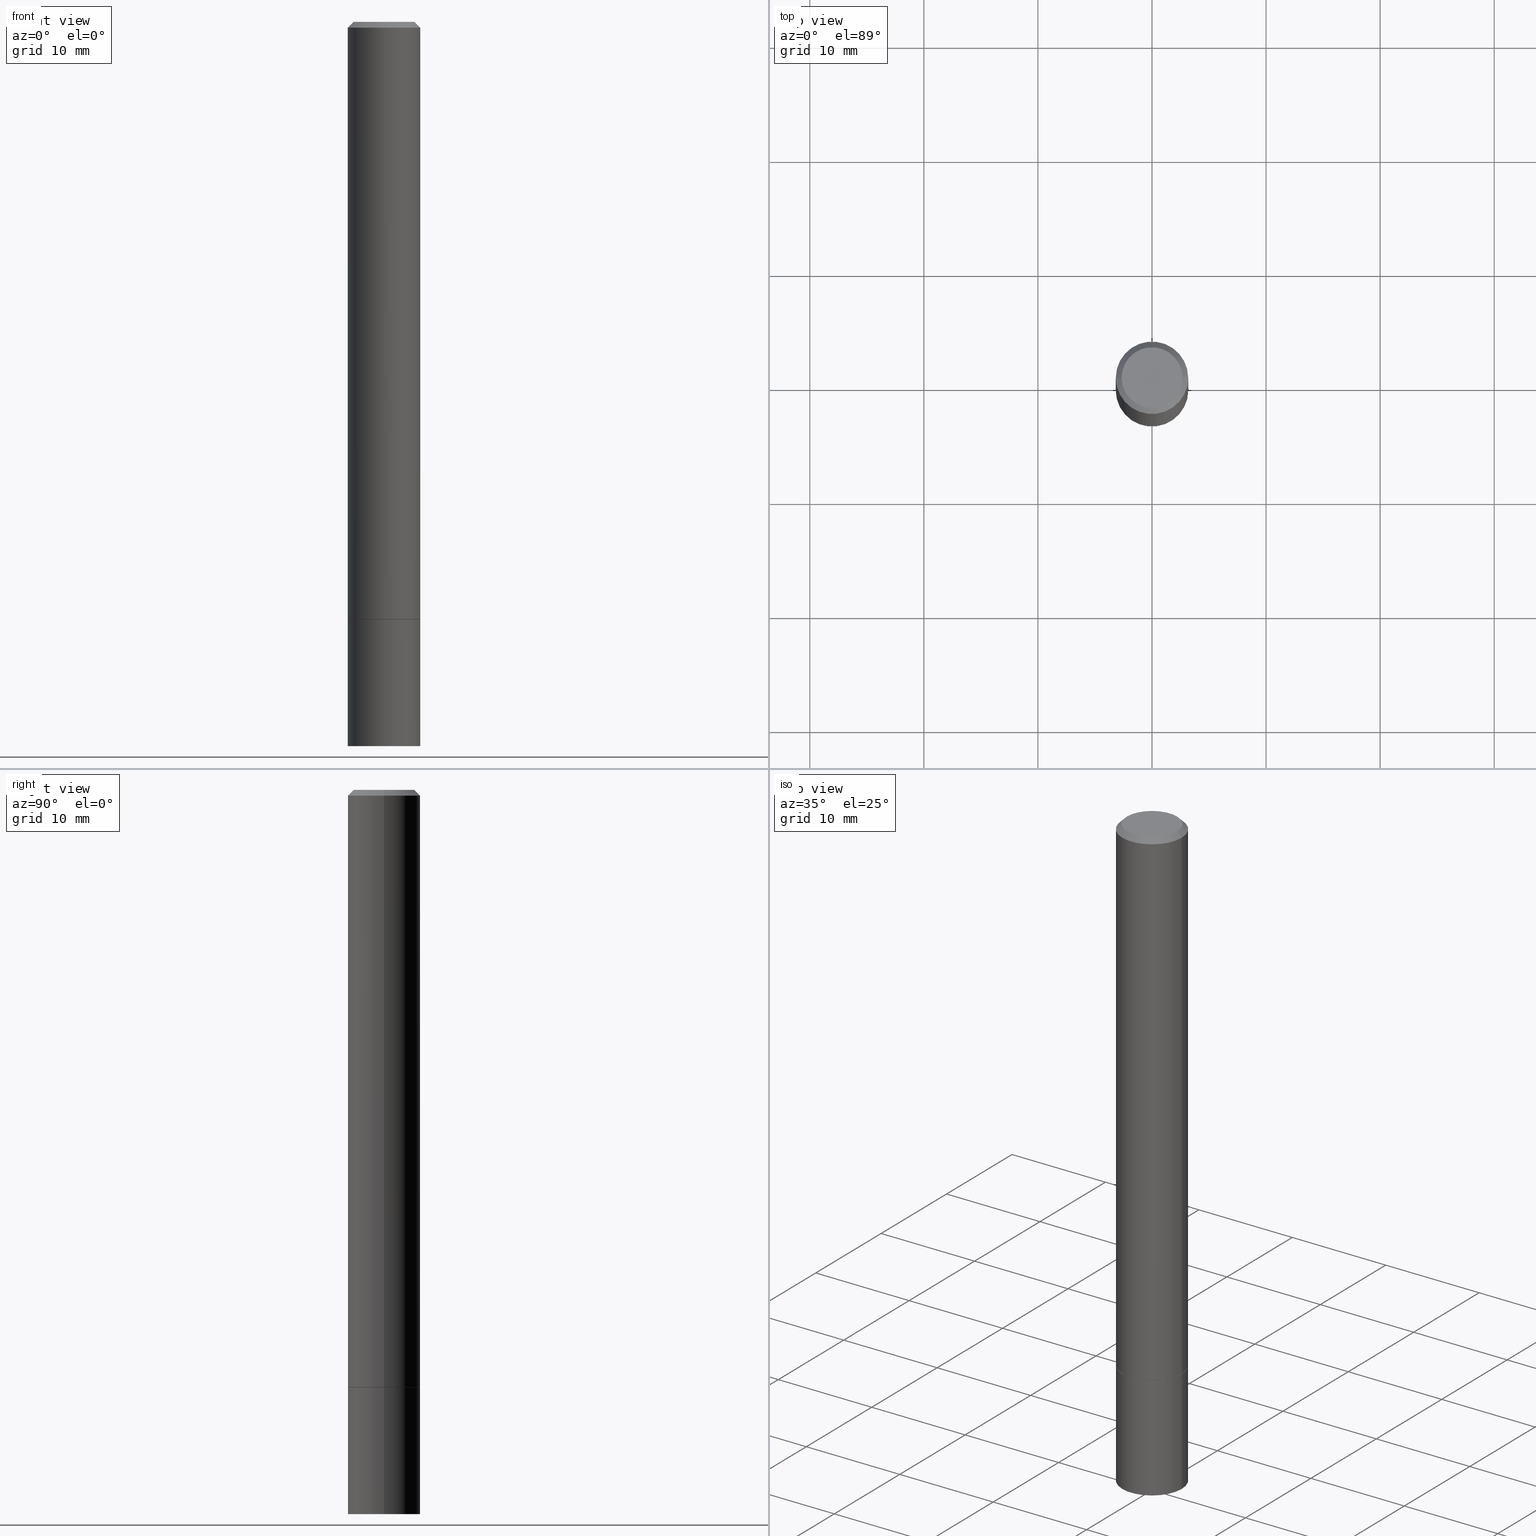
[diagram: canonical four-view strip — front | top / right | iso, engineering-drawing reading convention]
A machine part, canonical four-view strip (front | top / right | iso — engineering-drawing reading convention). The complete STEP part file that produces these views, byte-faithful:
ISO-10303-21;
HEADER;
FILE_DESCRIPTION (( 'STEP AP203' ),
    '1' );
FILE_NAME ('32659.STEP',
    '2022-04-27T15:46:36',
    ( '' ),
    ( '' ),
    'SwSTEP 2.0',
    'SolidWorks 2022',
    '' );
FILE_SCHEMA (( 'CONFIG_CONTROL_DESIGN' ));
ENDSEC;

DATA;
#1 = ORIENTED_EDGE ( 'NONE', *, *, #10, .F. ) ;
#2 = APPLICATION_CONTEXT ( 'configuration controlled 3d designs of mechanical parts and assemblies' ) ;
#3 = DIRECTION ( 'NONE',  ( -2.445468806185136597E-29, 3.491481338843145583E-15, 1.000000000000000000 ) ) ;
#4 = CIRCLE ( 'NONE', #306, 0.1239999999999999991 ) ;
#5 = DIRECTION ( 'NONE',  ( -2.445468806185136597E-29, 3.491481338843145583E-15, 1.000000000000000000 ) ) ;
#6 = CARTESIAN_POINT ( 'NONE',  ( 5.043779412756845352E-29, -7.201180261363990155E-15, -2.062500000000000444 ) ) ;
#7 = CARTESIAN_POINT ( 'NONE',  ( 0.000000000000000000, 0.000000000000000000, 0.000000000000000000 ) ) ;
#8 = LINE ( 'NONE', #364, #215 ) ;
#9 = AXIS2_PLACEMENT_3D ( 'NONE', #25, #210, #296 ) ;
#10 = EDGE_CURVE ( 'NONE', #49, #267, #332, .T. ) ;
#11 = DIRECTION ( 'NONE',  ( -2.438088387897960049E-29, 3.491481338843145188E-15, 1.000000000000000000 ) ) ;
#12 = DIRECTION ( 'NONE',  ( -1.000000000000000000, 6.982962677686267499E-15, 0.000000000000000000 ) ) ;
#13 = DIRECTION ( 'NONE',  ( -2.445468806185136597E-29, 3.491481338843145583E-15, 1.000000000000000000 ) ) ;
#14 = CC_DESIGN_PERSON_AND_ORGANIZATION_ASSIGNMENT ( #203, #295, ( #270 ) ) ;
#15 = DIRECTION ( 'NONE',  ( 0.7071067811864267805, -2.468850131080992517E-15, 0.7071067811866682540 ) ) ;
#16 = CARTESIAN_POINT ( 'NONE',  ( 5.041333943950659188E-29, -7.197688780025145571E-15, -2.061500000000000110 ) ) ;
#17 = ORIENTED_EDGE ( 'NONE', *, *, #258, .F. ) ;
#18 = CALENDAR_DATE ( 2022, 27, 4 ) ;
#19 = DIRECTION ( 'NONE',  ( -2.445468806185136597E-29, 3.491481338843145583E-15, 1.000000000000000000 ) ) ;
#20 = UNCERTAINTY_MEASURE_WITH_UNIT (LENGTH_MEASURE( 1.000000000000000082E-05 ), #255, 'distance_accuracy_value', 'NONE');
#21 = AXIS2_PLACEMENT_3D ( 'NONE', #105, #11, #313 ) ;
#22 = APPLICATION_PROTOCOL_DEFINITION ( 'international standard', 'config_control_design', 1994, #33 ) ;
#23 = EDGE_LOOP ( 'NONE', ( #193, #123 ) ) ;
#24 = PERSON_AND_ORGANIZATION_ROLE ( 'design_supplier' ) ;
#25 = CARTESIAN_POINT ( 'NONE',  ( 1.023866357444715952E-27, -1.461809805729698343E-13, -41.86789685704145825 ) ) ;
#26 =( NAMED_UNIT ( * ) SI_UNIT ( $, .STERADIAN. ) SOLID_ANGLE_UNIT ( ) );
#27 = ADVANCED_FACE ( 'NONE', ( #180 ), #275, .T. ) ;
#28 = VERTEX_POINT ( 'NONE', #58 ) ;
#29 = AXIS2_PLACEMENT_3D ( 'NONE', #223, #13, #111 ) ;
#30 = ORIENTED_EDGE ( 'NONE', *, *, #361, .T. ) ;
#31 = LINE ( 'NONE', #339, #245 ) ;
#32 = DIRECTION ( 'NONE',  ( 2.445468806185136597E-29, -3.491481338843145583E-15, -1.000000000000000000 ) ) ;
#33 = APPLICATION_CONTEXT ( 'configuration controlled 3d designs of mechanical parts and assemblies' ) ;
#34 = AXIS2_PLACEMENT_3D ( 'NONE', #284, #172, #12 ) ;
#35 = CARTESIAN_POINT ( 'NONE',  ( 5.043779412756845352E-29, -7.201180261363990155E-15, -2.062500000000000444 ) ) ;
#36 =( GEOMETRIC_REPRESENTATION_CONTEXT ( 3 ) GLOBAL_UNCERTAINTY_ASSIGNED_CONTEXT ( ( #20 ) ) GLOBAL_UNIT_ASSIGNED_CONTEXT ( ( #255, #128, #26 ) ) REPRESENTATION_CONTEXT ( 'NONE', 'WORKASPACE' ) );
#37 = LINE ( 'NONE', #164, #47 ) ;
#38 = LINE ( 'NONE', #246, #119 ) ;
#39 = ADVANCED_FACE ( 'NONE', ( #179 ), #109, .F. ) ;
#40 = DIRECTION ( 'NONE',  ( 1.000000000000000000, -6.982962677686270655E-15, 0.000000000000000000 ) ) ;
#41 = VERTEX_POINT ( 'NONE', #152 ) ;
#42 = CC_DESIGN_APPROVAL ( #107, ( #91 ) ) ;
#43 = CYLINDRICAL_SURFACE ( 'NONE', #325, 0.1249999999999998612 ) ;
#44 = CARTESIAN_POINT ( 'NONE',  ( 0.1239999999999999991, -8.067067633397087480E-15, -2.062500000000000444 ) ) ;
#45 = DIRECTION ( 'NONE',  ( 1.000000000000000000, -6.982962677686266711E-15, 4.876176775795935793E-29 ) ) ;
#46 = VERTEX_POINT ( 'NONE', #129 ) ;
#47 = VECTOR ( 'NONE', #214, 39.37007874015748143 ) ;
#48 = DIRECTION ( 'NONE',  ( 1.000000000000000000, -6.982962677686266711E-15, 4.876176775795935793E-29 ) ) ;
#49 = VERTEX_POINT ( 'NONE', #213 ) ;
#50 = PERSON_AND_ORGANIZATION ( #291, #189 ) ;
#51 = ORIENTED_EDGE ( 'NONE', *, *, #143, .T. ) ;
#52 = CALENDAR_DATE ( 2022, 27, 4 ) ;
#53 = ORIENTED_EDGE ( 'NONE', *, *, #71, .F. ) ;
#54 = AXIS2_PLACEMENT_3D ( 'NONE', #302, #389, #88 ) ;
#55 = LOCAL_TIME ( 11, 46, 36.00000000000000000, #93 ) ;
#56 = SECURITY_CLASSIFICATION_LEVEL ( 'unclassified' ) ;
#57 = ADVANCED_FACE ( 'NONE', ( #62 ), #182, .T. ) ;
#58 = CARTESIAN_POINT ( 'NONE',  ( 0.1250000000000000000, -8.074050596074771916E-15, -2.062500000000000000 ) ) ;
#59 = MECHANICAL_CONTEXT ( 'NONE', #33, 'mechanical' ) ;
#60 = ORIENTED_EDGE ( 'NONE', *, *, #143, .F. ) ;
#61 = DIRECTION ( 'NONE',  ( 0.000000000000000000, 0.000000000000000000, 1.000000000000000000 ) ) ;
#62 = FACE_OUTER_BOUND ( 'NONE', #79, .T. ) ;
#63 = CIRCLE ( 'NONE', #208, 0.1250000000000000000 ) ;
#64 = CC_DESIGN_APPROVAL ( #297, ( #127 ) ) ;
#65 = DIRECTION ( 'NONE',  ( 2.438088387897960049E-29, -3.491481338843145188E-15, -1.000000000000000000 ) ) ;
#66 = VECTOR ( 'NONE', #185, 39.37007874015748143 ) ;
#67 = LINE ( 'NONE', #132, #66 ) ;
#68 = DIRECTION ( 'NONE',  ( -2.445468806185136597E-29, 3.491481338843145583E-15, 1.000000000000000000 ) ) ;
#69 = AXIS2_PLACEMENT_3D ( 'NONE', #113, #196, #310 ) ;
#70 = CARTESIAN_POINT ( 'NONE',  ( 0.1249999999999997363, -9.273918764983025741E-16, -0.02000000000000003164 ) ) ;
#71 = EDGE_CURVE ( 'NONE', #267, #46, #37, .T. ) ;
#72 = FACE_OUTER_BOUND ( 'NONE', #85, .T. ) ;
#73 = DIRECTION ( 'NONE',  ( -2.445468806185136597E-29, 3.491481338843145583E-15, 1.000000000000000000 ) ) ;
#74 = CIRCLE ( 'NONE', #252, 0.1249999999999997363 ) ;
#75 = CC_DESIGN_PERSON_AND_ORGANIZATION_ASSIGNMENT ( #292, #178, ( #91 ) ) ;
#76 = CARTESIAN_POINT ( 'NONE',  ( -0.1049999999999997741, 7.681258945454874055E-16, -5.249639473182155366E-30 ) ) ;
#77 = ORIENTED_EDGE ( 'NONE', *, *, #251, .F. ) ;
#78 = ADVANCED_FACE ( 'NONE', ( #249 ), #159, .F. ) ;
#79 = EDGE_LOOP ( 'NONE', ( #350, #347, #330, #17 ) ) ;
#80 = DIRECTION ( 'NONE',  ( -2.445468806185136597E-29, 3.491481338843145583E-15, 1.000000000000000000 ) ) ;
#81 = CIRCLE ( 'NONE', #118, 0.1250000000000000000 ) ;
#82 = LOCAL_TIME ( 11, 46, 36.00000000000000000, #260 ) ;
#83 = ADVANCED_FACE ( 'NONE', ( #191 ), #278, .T. ) ;
#84 = APPROVAL_DATE_TIME ( #173, #163 ) ;
#85 = EDGE_LOOP ( 'NONE', ( #227, #51, #77 ) ) ;
#86 = ORIENTED_EDGE ( 'NONE', *, *, #343, .T. ) ;
#87 = SHAPE_DEFINITION_REPRESENTATION ( #248, #242 ) ;
#88 = DIRECTION ( 'NONE',  ( -1.000000000000000000, 6.982962677686267499E-15, 0.000000000000000000 ) ) ;
#89 = AXIS2_PLACEMENT_3D ( 'NONE', #7, #336, #273 ) ;
#90 = AXIS2_PLACEMENT_3D ( 'NONE', #266, #61, #383 ) ;
#91 = PRODUCT_DEFINITION ( 'UNKNOWN', '', #270, #194 ) ;
#92 = CARTESIAN_POINT ( 'NONE',  ( 5.041333943950659188E-29, -7.197688780025145571E-15, -2.061500000000000110 ) ) ;
#93 = COORDINATED_UNIVERSAL_TIME_OFFSET ( 5, 0, .BEHIND. ) ;
#94 = VERTEX_POINT ( 'NONE', #335 ) ;
#95 = CARTESIAN_POINT ( 'NONE',  ( 0.000000000000000000, 0.000000000000000000, 0.000000000000000000 ) ) ;
#96 = AXIS2_PLACEMENT_3D ( 'NONE', #6, #134, #184 ) ;
#97 = LOCAL_TIME ( 11, 46, 36.00000000000000000, #322 ) ;
#98 = DIRECTION ( 'NONE',  ( -0.7071067811865465735, 2.468850131082246805E-15, -0.7071067811865484609 ) ) ;
#99 = DIRECTION ( 'NONE',  ( -1.000000000000000000, 6.982962677686265922E-15, -4.876176775795935793E-29 ) ) ;
#100 = DIRECTION ( 'NONE',  ( -2.445468806185136877E-29, 3.491481338843145188E-15, 1.000000000000000000 ) ) ;
#101 = EDGE_CURVE ( 'NONE', #41, #380, #67, .T. ) ;
#102 = VECTOR ( 'NONE', #369, 39.37007874015748143 ) ;
#103 = LOCAL_TIME ( 11, 46, 36.00000000000000000, #120 ) ;
#104 = DIRECTION ( 'NONE',  ( -2.445468806185136597E-29, 3.491481338843145583E-15, 1.000000000000000000 ) ) ;
#105 = CARTESIAN_POINT ( 'NONE',  ( 5.043779412756844791E-29, -7.201180261363988578E-15, -2.062500000000000000 ) ) ;
#106 = DIRECTION ( 'NONE',  ( -2.445468806185136597E-29, 3.491481338843145583E-15, 1.000000000000000000 ) ) ;
#107 = APPROVAL ( #385, 'UNSPECIFIED' ) ;
#108 = CARTESIAN_POINT ( 'NONE',  ( 5.043779412756845352E-29, -7.201180261363990155E-15, -2.062500000000000444 ) ) ;
#109 = CONICAL_SURFACE ( 'NONE', #9, 2255.510300424507022, 1.553343034274960344 ) ;
#110 = CC_DESIGN_APPROVAL ( #163, ( #270 ) ) ;
#111 = DIRECTION ( 'NONE',  ( 1.000000000000000000, -6.982962677686267499E-15, 0.000000000000000000 ) ) ;
#112 = EDGE_LOOP ( 'NONE', ( #311, #117 ) ) ;
#113 = CARTESIAN_POINT ( 'NONE',  ( 0.000000000000000000, 0.000000000000000000, 0.000000000000000000 ) ) ;
#114 = ORIENTED_EDGE ( 'NONE', *, *, #343, .F. ) ;
#115 = EDGE_CURVE ( 'NONE', #321, #94, #334, .T. ) ;
#116 = CALENDAR_DATE ( 2022, 27, 4 ) ;
#117 = ORIENTED_EDGE ( 'NONE', *, *, #133, .F. ) ;
#118 = AXIS2_PLACEMENT_3D ( 'NONE', #169, #378, #286 ) ;
#119 = VECTOR ( 'NONE', #192, 39.37007874015748143 ) ;
#120 = COORDINATED_UNIVERSAL_TIME_OFFSET ( 5, 0, .BEHIND. ) ;
#121 = EDGE_LOOP ( 'NONE', ( #53, #359, #241, #197 ) ) ;
#122 = APPROVAL_ROLE ( '' ) ;
#123 = ORIENTED_EDGE ( 'NONE', *, *, #289, .T. ) ;
#124 = PERSON_AND_ORGANIZATION_ROLE ( 'design_owner' ) ;
#125 = EDGE_LOOP ( 'NONE', ( #323, #231, #233, #157 ) ) ;
#126 = EDGE_CURVE ( 'NONE', #236, #267, #135, .T. ) ;
#127 = SECURITY_CLASSIFICATION ( '', '', #56 ) ;
#128 =( NAMED_UNIT ( * ) PLANE_ANGLE_UNIT ( ) SI_UNIT ( $, .RADIAN. ) );
#129 = CARTESIAN_POINT ( 'NONE',  ( -0.1249999999999997363, 8.030407079339185615E-16, -0.02000000000000003164 ) ) ;
#130 = ORIENTED_EDGE ( 'NONE', *, *, #170, .T. ) ;
#131 = DIRECTION ( 'NONE',  ( 1.000000000000000000, -6.982962677686270655E-15, 0.000000000000000000 ) ) ;
#132 = CARTESIAN_POINT ( 'NONE',  ( -0.1250000000000000000, 8.881784197001252323E-16, -6.148668862818632227E-30 ) ) ;
#133 = EDGE_CURVE ( 'NONE', #236, #269, #4, .T. ) ;
#134 = DIRECTION ( 'NONE',  ( -2.445468806185136597E-29, 3.491481338843145583E-15, 1.000000000000000000 ) ) ;
#135 = LINE ( 'NONE', #280, #102 ) ;
#136 = CIRCLE ( 'NONE', #29, 0.1249999999999997363 ) ;
#137 = PLANE ( 'NONE',  #293 ) ;
#138 = DIRECTION ( 'NONE',  ( 0.7071067811865465735, -7.319954787623252890E-15, -0.7071067811865484609 ) ) ;
#139 = LENGTH_MEASURE_WITH_UNIT ( LENGTH_MEASURE( 0.02539999999999999897 ), #312 );
#140 = CYLINDRICAL_SURFACE ( 'NONE', #301, 0.1250000000000000000 ) ;
#141 = CONICAL_SURFACE ( 'NONE', #341, 2255.510300424507022, 1.553343034274960344 ) ;
#142 = CARTESIAN_POINT ( 'NONE',  ( -0.1250000000000000000, -7.076763384535801528E-15, -2.062500000000000000 ) ) ;
#143 = EDGE_CURVE ( 'NONE', #386, #154, #31, .T. ) ;
#144 = PERSON_AND_ORGANIZATION ( #291, #189 ) ;
#145 = ORIENTED_EDGE ( 'NONE', *, *, #317, .T. ) ;
#146 = DATE_AND_TIME ( #18, #103 ) ;
#147 = ORIENTED_EDGE ( 'NONE', *, *, #317, .F. ) ;
#148 = CONICAL_SURFACE ( 'NONE', #96, 0.1239999999999999991, 0.7853981633972775267 ) ;
#149 = DATE_AND_TIME ( #151, #97 ) ;
#150 = ORIENTED_EDGE ( 'NONE', *, *, #250, .F. ) ;
#151 = CALENDAR_DATE ( 2022, 27, 4 ) ;
#152 = CARTESIAN_POINT ( 'NONE',  ( -0.1250000000000006661, -7.855833012397075293E-15, -2.500000000000000000 ) ) ;
#153 = DATE_AND_TIME ( #212, #55 ) ;
#154 = VERTEX_POINT ( 'NONE', #305 ) ;
#155 = CIRCLE ( 'NONE', #69, 0.1049999999999997741 ) ;
#156 = APPROVAL_PERSON_ORGANIZATION ( #239, #107, #122 ) ;
#157 = ORIENTED_EDGE ( 'NONE', *, *, #158, .F. ) ;
#158 = EDGE_CURVE ( 'NONE', #321, #46, #8, .T. ) ;
#159 = PLANE ( 'NONE',  #370 ) ;
#160 = CARTESIAN_POINT ( 'NONE',  ( 1.023866357444715952E-27, -1.461809805729698343E-13, -41.86789685704145825 ) ) ;
#161 = AXIS2_PLACEMENT_3D ( 'NONE', #216, #3, #308 ) ;
#162 = DIRECTION ( 'NONE',  ( 1.000000000000000000, -6.982962677686270655E-15, 0.000000000000000000 ) ) ;
#163 = APPROVAL ( #349, 'UNSPECIFIED' ) ;
#164 = CARTESIAN_POINT ( 'NONE',  ( -0.1249999999999998612, 8.881784197001242463E-16, -6.148668862818625221E-30 ) ) ;
#165 = DIRECTION ( 'NONE',  ( -1.000000000000000000, 6.982962677686265922E-15, -4.876176775795935793E-29 ) ) ;
#166 = VECTOR ( 'NONE', #15, 39.37007874015748143 ) ;
#167 = FACE_OUTER_BOUND ( 'NONE', #261, .T. ) ;
#168 = CARTESIAN_POINT ( 'NONE',  ( 6.113672015462842613E-29, -8.728703347107864943E-15, -2.500000000000000000 ) ) ;
#169 = CARTESIAN_POINT ( 'NONE',  ( 6.113672015462842613E-29, -8.728703347107864943E-15, -2.500000000000000000 ) ) ;
#170 = EDGE_CURVE ( 'NONE', #269, #236, #201, .T. ) ;
#171 = CARTESIAN_POINT ( 'NONE',  ( 5.043779412756844791E-29, -7.201180261363988578E-15, -2.062500000000000000 ) ) ;
#172 = DIRECTION ( 'NONE',  ( 2.445468806185136597E-29, -3.491481338843145583E-15, -1.000000000000000000 ) ) ;
#173 = DATE_AND_TIME ( #52, #82 ) ;
#174 = ORIENTED_EDGE ( 'NONE', *, *, #258, .T. ) ;
#175 = CC_DESIGN_PERSON_AND_ORGANIZATION_ASSIGNMENT ( #320, #24, ( #270 ) ) ;
#176 = ORIENTED_EDGE ( 'NONE', *, *, #133, .T. ) ;
#177 = AXIS2_PLACEMENT_3D ( 'NONE', #344, #106, #288 ) ;
#178 = PERSON_AND_ORGANIZATION_ROLE ( 'creator' ) ;
#179 = FACE_OUTER_BOUND ( 'NONE', #299, .T. ) ;
#180 = FACE_OUTER_BOUND ( 'NONE', #256, .T. ) ;
#181 = ADVANCED_FACE ( 'NONE', ( #72 ), #141, .F. ) ;
#182 = CYLINDRICAL_SURFACE ( 'NONE', #161, 0.1250000000000000000 ) ;
#183 = AXIS2_PLACEMENT_3D ( 'NONE', #16, #372, #318 ) ;
#184 = DIRECTION ( 'NONE',  ( 1.000000000000000000, -6.982962677686270655E-15, 0.000000000000000000 ) ) ;
#185 = DIRECTION ( 'NONE',  ( -2.445468806185136877E-29, 3.491481338843145188E-15, 1.000000000000000000 ) ) ;
#186 = CARTESIAN_POINT ( 'NONE',  ( 0.1250000000000000000, -8.728703347107833388E-16, 6.095220969744919741E-30 ) ) ;
#187 = EDGE_CURVE ( 'NONE', #386, #41, #38, .T. ) ;
#188 = AXIS2_PLACEMENT_3D ( 'NONE', #171, #225, #40 ) ;
#189 = ORGANIZATION ( 'UNSPECIFIED', 'UNSPECIFIED', '' ) ;
#190 = CLOSED_SHELL ( 'NONE', ( #338, #181, #39, #57, #78 ) ) ;
#191 = FACE_OUTER_BOUND ( 'NONE', #206, .T. ) ;
#192 = DIRECTION ( 'NONE',  ( -0.9998476951563912696, 6.920964387254060733E-15, -0.01745240643727649296 ) ) ;
#193 = ORIENTED_EDGE ( 'NONE', *, *, #115, .T. ) ;
#194 = DESIGN_CONTEXT ( 'detailed design', #2, 'design' ) ;
#195 = DIRECTION ( 'NONE',  ( -2.445468806185136597E-29, 3.491481338843145583E-15, 1.000000000000000000 ) ) ;
#196 = DIRECTION ( 'NONE',  ( -2.445468806185136597E-29, 3.491481338843145583E-15, 1.000000000000000000 ) ) ;
#197 = ORIENTED_EDGE ( 'NONE', *, *, #319, .F. ) ;
#198 = CARTESIAN_POINT ( 'NONE',  ( -0.1250000000000000000, -2.745580783700874863E-15, -2.061500000000000110 ) ) ;
#199 = ADVANCED_FACE ( 'NONE', ( #309 ), #137, .F. ) ;
#200 = FACE_OUTER_BOUND ( 'NONE', #238, .T. ) ;
#201 = CIRCLE ( 'NONE', #264, 0.1239999999999999991 ) ;
#202 = APPROVAL_PERSON_ORGANIZATION ( #263, #297, #205 ) ;
#203 = PERSON_AND_ORGANIZATION ( #291, #189 ) ;
#204 = ORIENTED_EDGE ( 'NONE', *, *, #126, .F. ) ;
#205 = APPROVAL_ROLE ( '' ) ;
#206 = EDGE_LOOP ( 'NONE', ( #240, #352, #229, #384 ) ) ;
#207 = EDGE_LOOP ( 'NONE', ( #30, #174 ) ) ;
#208 = AXIS2_PLACEMENT_3D ( 'NONE', #168, #73, #259 ) ;
#209 = EDGE_CURVE ( 'NONE', #154, #28, #218, .T. ) ;
#210 = DIRECTION ( 'NONE',  ( 2.445468806185136597E-29, -3.491481338843145583E-15, -1.000000000000000000 ) ) ;
#211 = ADVANCED_FACE ( 'NONE', ( #333 ), #148, .T. ) ;
#212 = CALENDAR_DATE ( 2022, 27, 4 ) ;
#213 = CARTESIAN_POINT ( 'NONE',  ( 0.1250000000000000000, -8.070559114735927332E-15, -2.061500000000000110 ) ) ;
#214 = DIRECTION ( 'NONE',  ( -2.445468806185136877E-29, 3.491481338843145188E-15, 1.000000000000000000 ) ) ;
#215 = VECTOR ( 'NONE', #98, 39.37007874015748143 ) ;
#216 = CARTESIAN_POINT ( 'NONE',  ( 0.000000000000000000, 0.000000000000000000, 0.000000000000000000 ) ) ;
#217 = CC_DESIGN_DATE_AND_TIME_ASSIGNMENT ( #300, #387, ( #91 ) ) ;
#218 = LINE ( 'NONE', #186, #375 ) ;
#219 = CARTESIAN_POINT ( 'NONE',  ( -0.1239999999999999991, -6.314808814673242740E-15, -2.062500000000000444 ) ) ;
#220 = CARTESIAN_POINT ( 'NONE',  ( 5.043779412756845352E-29, -7.201180261363990155E-15, -2.062500000000000444 ) ) ;
#221 = EDGE_CURVE ( 'NONE', #49, #328, #303, .T. ) ;
#222 = CARTESIAN_POINT ( 'NONE',  ( 0.000000000000000000, 0.000000000000000000, 0.000000000000000000 ) ) ;
#223 = CARTESIAN_POINT ( 'NONE',  ( 4.890937612370280165E-31, -6.982962677686301470E-17, -0.02000000000000003164 ) ) ;
#224 = CIRCLE ( 'NONE', #188, 0.1250000000000000000 ) ;
#225 = DIRECTION ( 'NONE',  ( -2.445468806185136597E-29, 3.491481338843145583E-15, 1.000000000000000000 ) ) ;
#226 = CARTESIAN_POINT ( 'NONE',  ( 0.1239999999999999991, -8.067067633397087480E-15, -2.062500000000000444 ) ) ;
#227 = ORIENTED_EDGE ( 'NONE', *, *, #187, .F. ) ;
#228 = DIRECTION ( 'NONE',  ( -2.445468806185136597E-29, 3.491481338843145583E-15, 1.000000000000000000 ) ) ;
#229 = ORIENTED_EDGE ( 'NONE', *, *, #331, .F. ) ;
#230 = AXIS2_PLACEMENT_3D ( 'NONE', #95, #104, #277 ) ;
#231 = ORIENTED_EDGE ( 'NONE', *, *, #250, .T. ) ;
#232 = DATE_TIME_ROLE ( 'classification_date' ) ;
#233 = ORIENTED_EDGE ( 'NONE', *, *, #331, .T. ) ;
#234 = MANIFOLD_SOLID_BREP ( 'Body-Move/Copy2[2]', #271 ) ;
#235 = APPROVAL_ROLE ( '' ) ;
#236 = VERTEX_POINT ( 'NONE', #219 ) ;
#237 = PERSON_AND_ORGANIZATION_ROLE ( 'classification_officer' ) ;
#238 = EDGE_LOOP ( 'NONE', ( #145, #377, #357, #388 ) ) ;
#239 = PERSON_AND_ORGANIZATION ( #291, #189 ) ;
#240 = ORIENTED_EDGE ( 'NONE', *, *, #10, .T. ) ;
#241 = ORIENTED_EDGE ( 'NONE', *, *, #221, .T. ) ;
#242 = ADVANCED_BREP_SHAPE_REPRESENTATION ( '32659', ( #368, #234, #90 ), #36 ) ;
#243 = DIMENSIONAL_EXPONENTS ( 1.000000000000000000, 0.000000000000000000, 0.000000000000000000, 0.000000000000000000, 0.000000000000000000, 0.000000000000000000, 0.000000000000000000 ) ;
#244 = CARTESIAN_POINT ( 'NONE',  ( 8.728703347108337273E-16, 0.1249999999999927974, -2.062500000000000888 ) ) ;
#245 = VECTOR ( 'NONE', #304, 39.37007874015748143 ) ;
#246 = CARTESIAN_POINT ( 'NONE',  ( -4.254053171390082302E-19, -8.721085342924720670E-15, -2.497818116883973705 ) ) ;
#247 = CARTESIAN_POINT ( 'NONE',  ( 0.1249999999999998612, -8.728703347107823527E-16, 6.095220969744912735E-30 ) ) ;
#248 = PRODUCT_DEFINITION_SHAPE ( 'NONE', 'NONE',  #91 ) ;
#249 = FACE_OUTER_BOUND ( 'NONE', #207, .T. ) ;
#250 = EDGE_CURVE ( 'NONE', #94, #328, #337, .T. ) ;
#251 = EDGE_CURVE ( 'NONE', #41, #154, #63, .T. ) ;
#252 = AXIS2_PLACEMENT_3D ( 'NONE', #342, #228, #346 ) ;
#253 = FACE_OUTER_BOUND ( 'NONE', #125, .T. ) ;
#254 = CARTESIAN_POINT ( 'NONE',  ( 0.000000000000000000, 0.000000000000000000, 0.000000000000000000 ) ) ;
#255 =( CONVERSION_BASED_UNIT ( 'INCH', #139 ) LENGTH_UNIT ( ) NAMED_UNIT ( #243 ) );
#256 = EDGE_LOOP ( 'NONE', ( #150, #265, #326, #268 ) ) ;
#257 = DIRECTION ( 'NONE',  ( -2.445468806185136597E-29, 3.491481338843145583E-15, 1.000000000000000000 ) ) ;
#258 = EDGE_CURVE ( 'NONE', #380, #28, #224, .T. ) ;
#259 = DIRECTION ( 'NONE',  ( 1.000000000000000000, -6.982962677686270655E-15, 0.000000000000000000 ) ) ;
#260 = COORDINATED_UNIVERSAL_TIME_OFFSET ( 5, 0, .BEHIND. ) ;
#261 = EDGE_LOOP ( 'NONE', ( #204, #176, #86, #290 ) ) ;
#262 = ADVANCED_FACE ( 'NONE', ( #253 ), #324, .T. ) ;
#263 = PERSON_AND_ORGANIZATION ( #291, #189 ) ;
#264 = AXIS2_PLACEMENT_3D ( 'NONE', #35, #5, #162 ) ;
#265 = ORIENTED_EDGE ( 'NONE', *, *, #115, .F. ) ;
#266 = CARTESIAN_POINT ( 'NONE',  ( 0.000000000000000000, 0.000000000000000000, 0.000000000000000000 ) ) ;
#267 = VERTEX_POINT ( 'NONE', #198 ) ;
#268 = ORIENTED_EDGE ( 'NONE', *, *, #319, .T. ) ;
#269 = VERTEX_POINT ( 'NONE', #44 ) ;
#270 = PRODUCT_DEFINITION_FORMATION_WITH_SPECIFIED_SOURCE ( 'ANY', '', #307, .NOT_KNOWN. ) ;
#271 = CLOSED_SHELL ( 'NONE', ( #211, #83, #262, #27, #390, #279, #298, #199 ) ) ;
#272 = EDGE_LOOP ( 'NONE', ( #130, #294, #1, #114 ) ) ;
#273 = DIRECTION ( 'NONE',  ( 1.000000000000000000, -6.982962677686266711E-15, 4.876176775795935793E-29 ) ) ;
#274 = DIRECTION ( 'NONE',  ( -1.000000000000000000, 6.982962677686266711E-15, 0.000000000000000000 ) ) ;
#275 = CONICAL_SURFACE ( 'NONE', #54, 0.1249999999999997363, 0.7853981633974469467 ) ;
#276 = APPROVAL_PERSON_ORGANIZATION ( #144, #163, #235 ) ;
#277 = DIRECTION ( 'NONE',  ( 1.000000000000000000, -6.982962677686265922E-15, 4.876176775795935232E-29 ) ) ;
#278 = CYLINDRICAL_SURFACE ( 'NONE', #89, 0.1249999999999998612 ) ;
#279 = ADVANCED_FACE ( 'NONE', ( #167 ), #315, .T. ) ;
#280 = CARTESIAN_POINT ( 'NONE',  ( -0.1239999999999999991, -6.320107269021465931E-15, -2.062500000000000444 ) ) ;
#281 = AXIS2_PLACEMENT_3D ( 'NONE', #108, #80, #373 ) ;
#282 = AXIS2_PLACEMENT_3D ( 'NONE', #92, #19, #355 ) ;
#283 = PLANE ( 'NONE',  #21 ) ;
#284 = CARTESIAN_POINT ( 'NONE',  ( 4.890937612370280165E-31, -6.982962677686301470E-17, -0.02000000000000003164 ) ) ;
#285 = CC_DESIGN_PERSON_AND_ORGANIZATION_ASSIGNMENT ( #50, #237, ( #127 ) ) ;
#286 = DIRECTION ( 'NONE',  ( 1.000000000000000000, -6.982962677686270655E-15, 0.000000000000000000 ) ) ;
#287 = CARTESIAN_POINT ( 'NONE',  ( 0.1249999999999997363, -9.273918764983025741E-16, -0.02000000000000003164 ) ) ;
#288 = DIRECTION ( 'NONE',  ( 1.000000000000000000, -6.982962677686270655E-15, 0.000000000000000000 ) ) ;
#289 = EDGE_CURVE ( 'NONE', #94, #321, #155, .T. ) ;
#290 = ORIENTED_EDGE ( 'NONE', *, *, #345, .F. ) ;
#291 = PERSON ( 'UNSPECIFIED', 'UNSPECIFIED', 'UNSPECIFIED', ('UNSPECIFIED'), ('UNSPECIFIED'), ('UNSPECIFIED') ) ;
#292 = PERSON_AND_ORGANIZATION ( #291, #189 ) ;
#293 = AXIS2_PLACEMENT_3D ( 'NONE', #365, #362, #99 ) ;
#294 = ORIENTED_EDGE ( 'NONE', *, *, #126, .T. ) ;
#295 = PERSON_AND_ORGANIZATION_ROLE ( 'creator' ) ;
#296 = DIRECTION ( 'NONE',  ( -1.000000000000000000, 6.982962677686266711E-15, 0.000000000000000000 ) ) ;
#297 = APPROVAL ( #351, 'UNSPECIFIED' ) ;
#298 = ADVANCED_FACE ( 'NONE', ( #314 ), #283, .F. ) ;
#299 = EDGE_LOOP ( 'NONE', ( #60, #374, #147 ) ) ;
#300 = DATE_AND_TIME ( #116, #382 ) ;
#301 = AXIS2_PLACEMENT_3D ( 'NONE', #254, #257, #45 ) ;
#302 = CARTESIAN_POINT ( 'NONE',  ( 4.890937612370280165E-31, -6.982962677686301470E-17, -0.02000000000000003164 ) ) ;
#303 = LINE ( 'NONE', #247, #363 ) ;
#304 = DIRECTION ( 'NONE',  ( 0.9998476951563912696, -6.920387862090559512E-15, -0.01745240643727649296 ) ) ;
#305 = CARTESIAN_POINT ( 'NONE',  ( 0.1250000000000006661, -9.586265596829311121E-15, -2.500000000000000000 ) ) ;
#306 = AXIS2_PLACEMENT_3D ( 'NONE', #220, #68, #131 ) ;
#307 = PRODUCT ( '32659', '32659', '', ( #59 ) ) ;
#308 = DIRECTION ( 'NONE',  ( 1.000000000000000000, -6.982962677686266711E-15, 4.876176775795935793E-29 ) ) ;
#309 = FACE_OUTER_BOUND ( 'NONE', #23, .T. ) ;
#310 = DIRECTION ( 'NONE',  ( 1.000000000000000000, -6.982962677686265922E-15, 4.876176775795935232E-29 ) ) ;
#311 = ORIENTED_EDGE ( 'NONE', *, *, #170, .F. ) ;
#312 =( LENGTH_UNIT ( ) NAMED_UNIT ( * ) SI_UNIT ( $, .METRE. ) );
#313 = DIRECTION ( 'NONE',  ( 1.000000000000000000, -6.982962677686265922E-15, 4.876176775795935793E-29 ) ) ;
#314 = FACE_OUTER_BOUND ( 'NONE', #112, .T. ) ;
#315 = CONICAL_SURFACE ( 'NONE', #281, 0.1239999999999999991, 0.7853981633972775267 ) ;
#316 = CC_DESIGN_SECURITY_CLASSIFICATION ( #127, ( #270 ) ) ;
#317 = EDGE_CURVE ( 'NONE', #154, #41, #81, .T. ) ;
#318 = DIRECTION ( 'NONE',  ( 1.000000000000000000, -6.982962677686262766E-15, 0.000000000000000000 ) ) ;
#319 = EDGE_CURVE ( 'NONE', #46, #328, #74, .T. ) ;
#320 = PERSON_AND_ORGANIZATION ( #291, #189 ) ;
#321 = VERTEX_POINT ( 'NONE', #76 ) ;
#322 = COORDINATED_UNIVERSAL_TIME_OFFSET ( 5, 0, .BEHIND. ) ;
#323 = ORIENTED_EDGE ( 'NONE', *, *, #289, .F. ) ;
#324 = CONICAL_SURFACE ( 'NONE', #34, 0.1249999999999997363, 0.7853981633974469467 ) ;
#325 = AXIS2_PLACEMENT_3D ( 'NONE', #222, #195, #48 ) ;
#326 = ORIENTED_EDGE ( 'NONE', *, *, #158, .T. ) ;
#327 = APPROVAL_DATE_TIME ( #153, #107 ) ;
#328 = VERTEX_POINT ( 'NONE', #287 ) ;
#329 = COORDINATED_UNIVERSAL_TIME_OFFSET ( 5, 0, .BEHIND. ) ;
#330 = ORIENTED_EDGE ( 'NONE', *, *, #209, .T. ) ;
#331 = EDGE_CURVE ( 'NONE', #328, #46, #136, .T. ) ;
#332 = CIRCLE ( 'NONE', #282, 0.1250000000000000000 ) ;
#333 = FACE_OUTER_BOUND ( 'NONE', #272, .T. ) ;
#334 = CIRCLE ( 'NONE', #230, 0.1049999999999997741 ) ;
#335 = CARTESIAN_POINT ( 'NONE',  ( 0.1049999999999997741, -8.238720831321559881E-16, 5.444276250344138855E-30 ) ) ;
#336 = DIRECTION ( 'NONE',  ( -2.445468806185136597E-29, 3.491481338843145583E-15, 1.000000000000000000 ) ) ;
#337 = LINE ( 'NONE', #70, #356 ) ;
#338 = ADVANCED_FACE ( 'NONE', ( #200 ), #140, .T. ) ;
#339 = CARTESIAN_POINT ( 'NONE',  ( 4.254053172611749259E-19, -8.721085342924720670E-15, -2.497818116883973705 ) ) ;
#340 = CARTESIAN_POINT ( 'NONE',  ( 6.108039229418567210E-29, -8.721510748241921569E-15, -2.497818116883973705 ) ) ;
#341 = AXIS2_PLACEMENT_3D ( 'NONE', #160, #32, #274 ) ;
#342 = CARTESIAN_POINT ( 'NONE',  ( 4.890937612370280165E-31, -6.982962677686301470E-17, -0.02000000000000003164 ) ) ;
#343 = EDGE_CURVE ( 'NONE', #269, #49, #376, .T. ) ;
#344 = CARTESIAN_POINT ( 'NONE',  ( 5.043779412756844791E-29, -7.201180261363988578E-15, -2.062500000000000000 ) ) ;
#345 = EDGE_CURVE ( 'NONE', #267, #49, #348, .T. ) ;
#346 = DIRECTION ( 'NONE',  ( 1.000000000000000000, -6.982962677686267499E-15, 0.000000000000000000 ) ) ;
#347 = ORIENTED_EDGE ( 'NONE', *, *, #251, .T. ) ;
#348 = CIRCLE ( 'NONE', #183, 0.1250000000000000000 ) ;
#349 = APPROVAL_STATUS ( 'not_yet_approved' ) ;
#350 = ORIENTED_EDGE ( 'NONE', *, *, #101, .F. ) ;
#351 = APPROVAL_STATUS ( 'not_yet_approved' ) ;
#352 = ORIENTED_EDGE ( 'NONE', *, *, #71, .T. ) ;
#353 = PRODUCT_RELATED_PRODUCT_CATEGORY ( 'detail', '', ( #307 ) ) ;
#354 = APPROVAL_DATE_TIME ( #149, #297 ) ;
#355 = DIRECTION ( 'NONE',  ( 1.000000000000000000, -6.982962677686262766E-15, 0.000000000000000000 ) ) ;
#356 = VECTOR ( 'NONE', #138, 39.37007874015748143 ) ;
#357 = ORIENTED_EDGE ( 'NONE', *, *, #361, .F. ) ;
#358 = PERSON_AND_ORGANIZATION ( #291, #189 ) ;
#359 = ORIENTED_EDGE ( 'NONE', *, *, #345, .T. ) ;
#360 = CC_DESIGN_PERSON_AND_ORGANIZATION_ASSIGNMENT ( #358, #124, ( #307 ) ) ;
#361 = EDGE_CURVE ( 'NONE', #28, #380, #381, .T. ) ;
#362 = DIRECTION ( 'NONE',  ( 2.438088387897960049E-29, -3.491481338843145188E-15, -1.000000000000000000 ) ) ;
#363 = VECTOR ( 'NONE', #100, 39.37007874015748143 ) ;
#364 = CARTESIAN_POINT ( 'NONE',  ( -0.1249999999999997363, 8.030407079339185615E-16, -0.02000000000000003164 ) ) ;
#365 = CARTESIAN_POINT ( 'NONE',  ( 7.332110811570563480E-16, 0.1049999999999997741, -3.666055405785295052E-16 ) ) ;
#366 = CC_DESIGN_DATE_AND_TIME_ASSIGNMENT ( #146, #232, ( #127 ) ) ;
#367 = DIRECTION ( 'NONE',  ( -2.445468806185136877E-29, 3.491481338843145188E-15, 1.000000000000000000 ) ) ;
#368 = MANIFOLD_SOLID_BREP ( 'Body-Move/Copy2[1]', #190 ) ;
#369 = DIRECTION ( 'NONE',  ( -0.7071067811864267805, 7.493145998869918709E-15, 0.7071067811866682540 ) ) ;
#370 = AXIS2_PLACEMENT_3D ( 'NONE', #244, #65, #165 ) ;
#371 = FACE_OUTER_BOUND ( 'NONE', #121, .T. ) ;
#372 = DIRECTION ( 'NONE',  ( -2.445468806185136597E-29, 3.491481338843145583E-15, 1.000000000000000000 ) ) ;
#373 = DIRECTION ( 'NONE',  ( 1.000000000000000000, -6.982962677686270655E-15, 0.000000000000000000 ) ) ;
#374 = ORIENTED_EDGE ( 'NONE', *, *, #187, .T. ) ;
#375 = VECTOR ( 'NONE', #367, 39.37007874015748143 ) ;
#376 = LINE ( 'NONE', #226, #166 ) ;
#377 = ORIENTED_EDGE ( 'NONE', *, *, #101, .T. ) ;
#378 = DIRECTION ( 'NONE',  ( -2.445468806185136597E-29, 3.491481338843145583E-15, 1.000000000000000000 ) ) ;
#379 = APPLICATION_PROTOCOL_DEFINITION ( 'international standard', 'config_control_design', 1994, #2 ) ;
#380 = VERTEX_POINT ( 'NONE', #142 ) ;
#381 = CIRCLE ( 'NONE', #177, 0.1250000000000000000 ) ;
#382 = LOCAL_TIME ( 11, 46, 36.00000000000000000, #329 ) ;
#383 = DIRECTION ( 'NONE',  ( 1.000000000000000000, 0.000000000000000000, 0.000000000000000000 ) ) ;
#384 = ORIENTED_EDGE ( 'NONE', *, *, #221, .F. ) ;
#385 = APPROVAL_STATUS ( 'not_yet_approved' ) ;
#386 = VERTEX_POINT ( 'NONE', #340 ) ;
#387 = DATE_TIME_ROLE ( 'creation_date' ) ;
#388 = ORIENTED_EDGE ( 'NONE', *, *, #209, .F. ) ;
#389 = DIRECTION ( 'NONE',  ( 2.445468806185136597E-29, -3.491481338843145583E-15, -1.000000000000000000 ) ) ;
#390 = ADVANCED_FACE ( 'NONE', ( #371 ), #43, .T. ) ;
ENDSEC;
END-ISO-10303-21;
